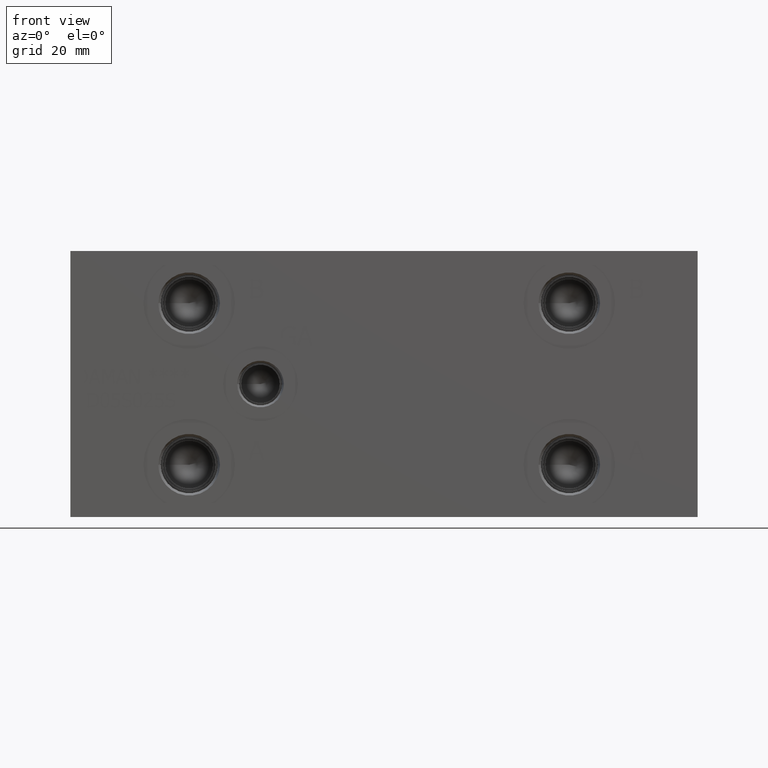
[diagram: clean part render]
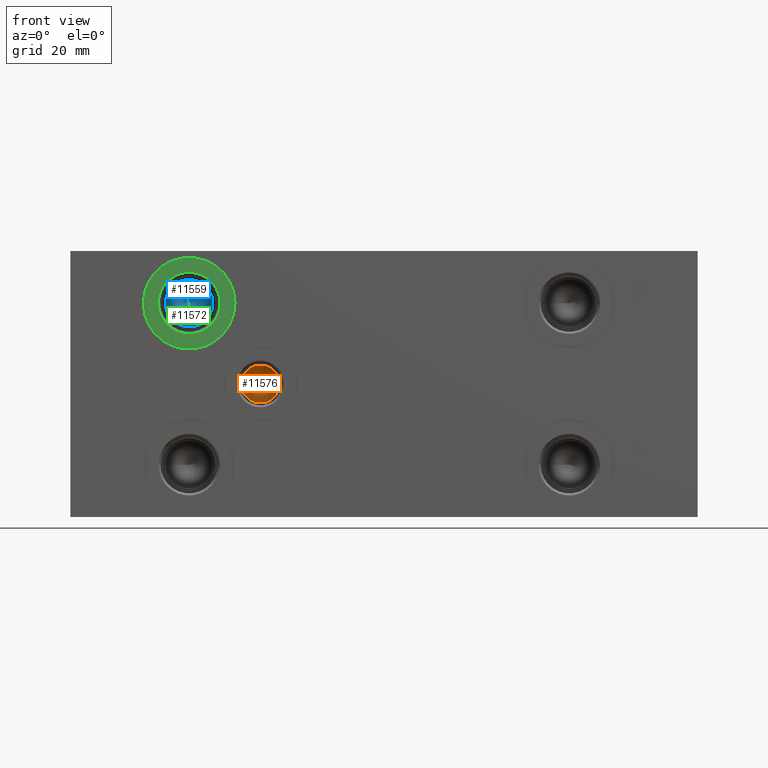
[diagram: same view with three faces highlighted in distinct colors, each labeled with its STEP entity id]
A machine part, front view with three faces highlighted in distinct colors.
Their STEP definitions:

[orange] entity #11576 — the highlighted conical surface has half-angle 60 deg.
#111=CONICAL_SURFACE('',#12177,3.175,1.0471975511966);
#278=CIRCLE('',#12178,6.35);
#279=CIRCLE('',#12179,6.35);
#1487=FACE_OUTER_BOUND('',#2152,.T.);
#2152=EDGE_LOOP('',(#9945,#9946,#9947,#9948));
#3235=LINE('',#19829,#4279);
#4279=VECTOR('',#14391,3.175);
#5317=VERTEX_POINT('',#19825);
#5318=VERTEX_POINT('',#19826);
#5319=VERTEX_POINT('',#19828);
#6897=EDGE_CURVE('',#5317,#5318,#278,.T.);
#6898=EDGE_CURVE('',#5318,#5319,#3235,.T.);
#6899=EDGE_CURVE('',#5318,#5317,#279,.T.);
#9945=ORIENTED_EDGE('',*,*,#6897,.T.);
#9946=ORIENTED_EDGE('',*,*,#6898,.T.);
#9947=ORIENTED_EDGE('',*,*,#6898,.F.);
#9948=ORIENTED_EDGE('',*,*,#6899,.T.);
#11576=ADVANCED_FACE('',(#1487),#111,.F.);
#12177=AXIS2_PLACEMENT_3D('',#19824,#14387,#14388);
#12178=AXIS2_PLACEMENT_3D('',#19827,#14389,#14390);
#12179=AXIS2_PLACEMENT_3D('',#19830,#14392,#14393);
#14387=DIRECTION('center_axis',(0.,-1.,0.));
#14388=DIRECTION('ref_axis',(1.,0.,0.));
#14389=DIRECTION('center_axis',(0.,-1.,0.));
#14390=DIRECTION('ref_axis',(1.,0.,0.));
#14391=DIRECTION('',(0.866025403784439,0.5,1.06057523872491E-16));
#14392=DIRECTION('center_axis',(0.,-1.,0.));
#14393=DIRECTION('ref_axis',(1.,0.,0.));
#19824=CARTESIAN_POINT('Origin',(63.5,21.8251871046771,44.45));
#19825=CARTESIAN_POINT('',(69.85,19.9921,44.45));
#19826=CARTESIAN_POINT('',(57.15,19.9921,44.45));
#19827=CARTESIAN_POINT('Origin',(63.5,19.9921,44.45));
#19828=CARTESIAN_POINT('',(63.5,23.6582742093541,44.45));
#19829=CARTESIAN_POINT('',(60.325,21.8251871046771,44.45));
#19830=CARTESIAN_POINT('Origin',(63.5,19.9921,44.45));

[blue] entity #11559 — the highlighted conical surface has half-angle 60 deg.
#105=CONICAL_SURFACE('',#12135,3.96875,1.0471975511966);
#253=CIRCLE('',#12136,7.9375);
#254=CIRCLE('',#12137,7.9375);
#1470=FACE_OUTER_BOUND('',#2132,.T.);
#2132=EDGE_LOOP('',(#9864,#9865,#9866,#9867));
#3221=LINE('',#19746,#4265);
#4265=VECTOR('',#14293,3.96875);
#5290=VERTEX_POINT('',#19742);
#5291=VERTEX_POINT('',#19743);
#5292=VERTEX_POINT('',#19745);
#6858=EDGE_CURVE('',#5290,#5291,#253,.T.);
#6859=EDGE_CURVE('',#5291,#5292,#3221,.T.);
#6860=EDGE_CURVE('',#5291,#5290,#254,.T.);
#9864=ORIENTED_EDGE('',*,*,#6858,.T.);
#9865=ORIENTED_EDGE('',*,*,#6859,.T.);
#9866=ORIENTED_EDGE('',*,*,#6859,.F.);
#9867=ORIENTED_EDGE('',*,*,#6860,.T.);
#11559=ADVANCED_FACE('',(#1470),#105,.F.);
#12135=AXIS2_PLACEMENT_3D('',#19741,#14289,#14290);
#12136=AXIS2_PLACEMENT_3D('',#19744,#14291,#14292);
#12137=AXIS2_PLACEMENT_3D('',#19747,#14294,#14295);
#14289=DIRECTION('center_axis',(0.,-1.,0.));
#14290=DIRECTION('ref_axis',(1.,0.,0.));
#14291=DIRECTION('center_axis',(0.,-1.,0.));
#14292=DIRECTION('ref_axis',(1.,0.,0.));
#14293=DIRECTION('',(0.866025403784439,0.5,1.06057523872491E-16));
#14294=DIRECTION('center_axis',(0.,-1.,0.));
#14295=DIRECTION('ref_axis',(1.,0.,0.));
#19741=CARTESIAN_POINT('Origin',(39.6748,25.5239588808463,71.4502));
#19742=CARTESIAN_POINT('',(47.6123,23.2326,71.4502));
#19743=CARTESIAN_POINT('',(31.7373,23.2326,71.4502));
#19744=CARTESIAN_POINT('Origin',(39.6748,23.2326,71.4502));
#19745=CARTESIAN_POINT('',(39.6748,27.8153177616927,71.4502));
#19746=CARTESIAN_POINT('',(35.70605,25.5239588808463,71.4502));
#19747=CARTESIAN_POINT('Origin',(39.6748,23.2326,71.4502));

[green] entity #11572 — the highlighted planar face has unit normal (0, 1, 0).
#270=CIRCLE('',#12165,15.3162);
#271=CIRCLE('',#12166,15.3162);
#272=CIRCLE('',#12168,10.2997);
#273=CIRCLE('',#12169,10.2997);
#448=FACE_BOUND('',#2148,.T.);
#1483=FACE_OUTER_BOUND('',#2147,.T.);
#2147=EDGE_LOOP('',(#9924,#9925));
#2148=EDGE_LOOP('',(#9926,#9927));
#5309=VERTEX_POINT('',#19800);
#5310=VERTEX_POINT('',#19802);
#5311=VERTEX_POINT('',#19806);
#5312=VERTEX_POINT('',#19807);
#6886=EDGE_CURVE('',#5309,#5310,#270,.T.);
#6887=EDGE_CURVE('',#5310,#5309,#271,.T.);
#6888=EDGE_CURVE('',#5311,#5312,#272,.T.);
#6889=EDGE_CURVE('',#5312,#5311,#273,.T.);
#9924=ORIENTED_EDGE('',*,*,#6887,.F.);
#9925=ORIENTED_EDGE('',*,*,#6886,.F.);
#9926=ORIENTED_EDGE('',*,*,#6888,.T.);
#9927=ORIENTED_EDGE('',*,*,#6889,.T.);
#10588=PLANE('',#12167);
#11572=ADVANCED_FACE('',(#1483,#448),#10588,.F.);
#12165=AXIS2_PLACEMENT_3D('',#19803,#14360,#14361);
#12166=AXIS2_PLACEMENT_3D('',#19804,#14362,#14363);
#12167=AXIS2_PLACEMENT_3D('',#19805,#14364,#14365);
#12168=AXIS2_PLACEMENT_3D('',#19808,#14366,#14367);
#12169=AXIS2_PLACEMENT_3D('',#19809,#14368,#14369);
#14360=DIRECTION('center_axis',(0.,1.,0.));
#14361=DIRECTION('ref_axis',(1.,0.,0.));
#14362=DIRECTION('center_axis',(0.,1.,0.));
#14363=DIRECTION('ref_axis',(1.,0.,0.));
#14364=DIRECTION('center_axis',(0.,1.,0.));
#14365=DIRECTION('ref_axis',(0.,0.,1.));
#14366=DIRECTION('center_axis',(0.,1.,0.));
#14367=DIRECTION('ref_axis',(1.,0.,0.));
#14368=DIRECTION('center_axis',(0.,1.,0.));
#14369=DIRECTION('ref_axis',(1.,0.,0.));
#19800=CARTESIAN_POINT('',(24.3586,0.7874,71.4502));
#19802=CARTESIAN_POINT('',(54.991,0.7874,71.4502));
#19803=CARTESIAN_POINT('Origin',(39.6748,0.7874,71.4502));
#19804=CARTESIAN_POINT('Origin',(39.6748,0.7874,71.4502));
#19805=CARTESIAN_POINT('Origin',(49.9745,0.7874,71.4502));
#19806=CARTESIAN_POINT('',(49.9745,0.7874,71.4502));
#19807=CARTESIAN_POINT('',(29.3751,0.787400000000001,71.4502));
#19808=CARTESIAN_POINT('Origin',(39.6748,0.7874,71.4502));
#19809=CARTESIAN_POINT('Origin',(39.6748,0.7874,71.4502));